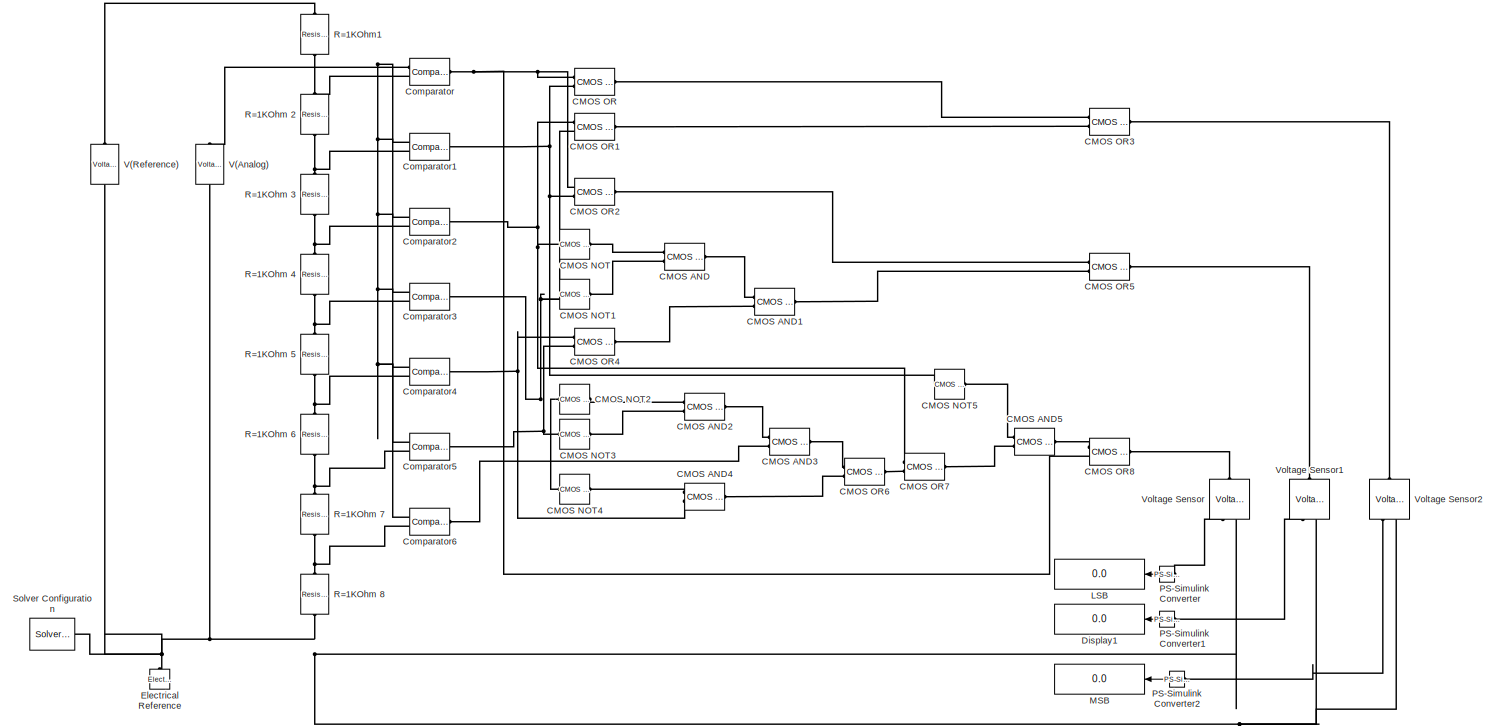
[diagram: root canvas - part 1/1, most of the canvas]
MODEL slx_9718b8f24e78
KIND model
CONFIG AbsTol = auto
CONFIG EnableMultiTasking = off
CONFIG FixedStep = auto
CONFIG MaxStep = auto
CONFIG MinStep = auto
CONFIG RelTol = 1e-3
CONFIG SampleTimeConstraint = Unconstrained
CONFIG SolverName = VariableStepAuto
CONFIG StartTime = 0.0
CONFIG StopTime = 10
BLOCK [Reference] CMOS AND  REF=ee_lib/Integrated Circuits/Logic/CMOS AND
  Ports = [0, 0, 0, 0, 0, 2, 1]
  SourceBlock = ee_lib/Integrated Circuits/Logic/CMOS AND
  SourceProductBaseCode = PS
  SourceType = CMOS AND
BLOCK [Reference] CMOS AND1  REF=ee_lib/Integrated Circuits/Logic/CMOS AND
  Ports = [0, 0, 0, 0, 0, 2, 1]
  SourceBlock = ee_lib/Integrated Circuits/Logic/CMOS AND
  SourceProductBaseCode = PS
  SourceType = CMOS AND
BLOCK [Reference] CMOS AND2  REF=ee_lib/Integrated Circuits/Logic/CMOS AND
  Ports = [0, 0, 0, 0, 0, 2, 1]
  SourceBlock = ee_lib/Integrated Circuits/Logic/CMOS AND
  SourceProductBaseCode = PS
  SourceType = CMOS AND
BLOCK [Reference] CMOS AND3  REF=ee_lib/Integrated Circuits/Logic/CMOS AND
  Ports = [0, 0, 0, 0, 0, 2, 1]
  SourceBlock = ee_lib/Integrated Circuits/Logic/CMOS AND
  SourceProductBaseCode = PS
  SourceType = CMOS AND
BLOCK [Reference] CMOS AND4  REF=ee_lib/Integrated Circuits/Logic/CMOS AND
  Ports = [0, 0, 0, 0, 0, 2, 1]
  SourceBlock = ee_lib/Integrated Circuits/Logic/CMOS AND
  SourceProductBaseCode = PS
  SourceType = CMOS AND
BLOCK [Reference] CMOS AND5  REF=ee_lib/Integrated Circuits/Logic/CMOS AND
  Ports = [0, 0, 0, 0, 0, 2, 1]
  SourceBlock = ee_lib/Integrated Circuits/Logic/CMOS AND
  SourceProductBaseCode = PS
  SourceType = CMOS AND
BLOCK [Reference] CMOS NOT  REF=ee_lib/Integrated Circuits/Logic/CMOS NOT
  Ports = [0, 0, 0, 0, 0, 1, 1]
  SourceBlock = ee_lib/Integrated Circuits/Logic/CMOS NOT
  SourceProductBaseCode = PS
  SourceType = CMOS NOT
BLOCK [Reference] CMOS NOT1  REF=ee_lib/Integrated Circuits/Logic/CMOS NOT
  Ports = [0, 0, 0, 0, 0, 1, 1]
  SourceBlock = ee_lib/Integrated Circuits/Logic/CMOS NOT
  SourceProductBaseCode = PS
  SourceType = CMOS NOT
BLOCK [Reference] CMOS NOT2  REF=ee_lib/Integrated Circuits/Logic/CMOS NOT
  Ports = [0, 0, 0, 0, 0, 1, 1]
  SourceBlock = ee_lib/Integrated Circuits/Logic/CMOS NOT
  SourceProductBaseCode = PS
  SourceType = CMOS NOT
BLOCK [Reference] CMOS NOT3  REF=ee_lib/Integrated Circuits/Logic/CMOS NOT
  Ports = [0, 0, 0, 0, 0, 1, 1]
  SourceBlock = ee_lib/Integrated Circuits/Logic/CMOS NOT
  SourceProductBaseCode = PS
  SourceType = CMOS NOT
BLOCK [Reference] CMOS NOT4  REF=ee_lib/Integrated Circuits/Logic/CMOS NOT
  Ports = [0, 0, 0, 0, 0, 1, 1]
  SourceBlock = ee_lib/Integrated Circuits/Logic/CMOS NOT
  SourceProductBaseCode = PS
  SourceType = CMOS NOT
BLOCK [Reference] CMOS NOT5  REF=ee_lib/Integrated Circuits/Logic/CMOS NOT
  Ports = [0, 0, 0, 0, 0, 1, 1]
  SourceBlock = ee_lib/Integrated Circuits/Logic/CMOS NOT
  SourceProductBaseCode = PS
  SourceType = CMOS NOT
BLOCK [Reference] CMOS OR  REF=ee_lib/Integrated Circuits/Logic/CMOS OR
  Ports = [0, 0, 0, 0, 0, 2, 1]
  SourceBlock = ee_lib/Integrated Circuits/Logic/CMOS OR
  SourceProductBaseCode = PS
  SourceType = CMOS OR
BLOCK [Reference] CMOS OR1  REF=ee_lib/Integrated Circuits/Logic/CMOS OR
  Ports = [0, 0, 0, 0, 0, 2, 1]
  SourceBlock = ee_lib/Integrated Circuits/Logic/CMOS OR
  SourceProductBaseCode = PS
  SourceType = CMOS OR
BLOCK [Reference] CMOS OR2  REF=ee_lib/Integrated Circuits/Logic/CMOS OR
  Ports = [0, 0, 0, 0, 0, 2, 1]
  SourceBlock = ee_lib/Integrated Circuits/Logic/CMOS OR
  SourceProductBaseCode = PS
  SourceType = CMOS OR
BLOCK [Reference] CMOS OR3  REF=ee_lib/Integrated Circuits/Logic/CMOS OR
  Ports = [0, 0, 0, 0, 0, 2, 1]
  SourceBlock = ee_lib/Integrated Circuits/Logic/CMOS OR
  SourceProductBaseCode = PS
  SourceType = CMOS OR
BLOCK [Reference] CMOS OR4  REF=ee_lib/Integrated Circuits/Logic/CMOS OR
  Ports = [0, 0, 0, 0, 0, 2, 1]
  SourceBlock = ee_lib/Integrated Circuits/Logic/CMOS OR
  SourceProductBaseCode = PS
  SourceType = CMOS OR
BLOCK [Reference] CMOS OR5  REF=ee_lib/Integrated Circuits/Logic/CMOS OR
  Ports = [0, 0, 0, 0, 0, 2, 1]
  SourceBlock = ee_lib/Integrated Circuits/Logic/CMOS OR
  SourceProductBaseCode = PS
  SourceType = CMOS OR
BLOCK [Reference] CMOS OR6  REF=ee_lib/Integrated Circuits/Logic/CMOS OR
  Ports = [0, 0, 0, 0, 0, 2, 1]
  SourceBlock = ee_lib/Integrated Circuits/Logic/CMOS OR
  SourceProductBaseCode = PS
  SourceType = CMOS OR
BLOCK [Reference] CMOS OR7  REF=ee_lib/Integrated Circuits/Logic/CMOS OR
  Ports = [0, 0, 0, 0, 0, 2, 1]
  SourceBlock = ee_lib/Integrated Circuits/Logic/CMOS OR
  SourceProductBaseCode = PS
  SourceType = CMOS OR
BLOCK [Reference] CMOS OR8  REF=ee_lib/Integrated Circuits/Logic/CMOS OR
  Ports = [0, 0, 0, 0, 0, 2, 1]
  SourceBlock = ee_lib/Integrated Circuits/Logic/CMOS OR
  SourceProductBaseCode = PS
  SourceType = CMOS OR
BLOCK [Reference] Comparator  REF=ee_lib/Integrated Circuits/Comparator
  Ports = [0, 0, 0, 0, 0, 2, 1]
  SourceBlock = ee_lib/Integrated Circuits/Comparator
  SourceProductBaseCode = PS
  SourceType = Comparator
BLOCK [Reference] Comparator1  REF=ee_lib/Integrated Circuits/Comparator
  Ports = [0, 0, 0, 0, 0, 2, 1]
  SourceBlock = ee_lib/Integrated Circuits/Comparator
  SourceProductBaseCode = PS
  SourceType = Comparator
BLOCK [Reference] Comparator2  REF=ee_lib/Integrated Circuits/Comparator
  Ports = [0, 0, 0, 0, 0, 2, 1]
  SourceBlock = ee_lib/Integrated Circuits/Comparator
  SourceProductBaseCode = PS
  SourceType = Comparator
BLOCK [Reference] Comparator3  REF=ee_lib/Integrated Circuits/Comparator
  Ports = [0, 0, 0, 0, 0, 2, 1]
  SourceBlock = ee_lib/Integrated Circuits/Comparator
  SourceProductBaseCode = PS
  SourceType = Comparator
BLOCK [Reference] Comparator4  REF=ee_lib/Integrated Circuits/Comparator
  Ports = [0, 0, 0, 0, 0, 2, 1]
  SourceBlock = ee_lib/Integrated Circuits/Comparator
  SourceProductBaseCode = PS
  SourceType = Comparator
BLOCK [Reference] Comparator5  REF=ee_lib/Integrated Circuits/Comparator
  Ports = [0, 0, 0, 0, 0, 2, 1]
  SourceBlock = ee_lib/Integrated Circuits/Comparator
  SourceProductBaseCode = PS
  SourceType = Comparator
BLOCK [Reference] Comparator6  REF=ee_lib/Integrated Circuits/Comparator
  Ports = [0, 0, 0, 0, 0, 2, 1]
  SourceBlock = ee_lib/Integrated Circuits/Comparator
  SourceProductBaseCode = PS
  SourceType = Comparator
BLOCK [Display] Display1
  Decimation = 1
  NameLocation = top
  Ports = [1]
BLOCK [Reference] Electrical Reference  REF=fl_lib/Electrical/Electrical Elements/Electrical Reference
  NameLocation = right
  Ports = [0, 0, 0, 0, 0, 1]
  SourceBlock = fl_lib/Electrical/Electrical Elements/Electrical Reference
  SourceProductBaseCode = PW,SS,VE
  SourceType = Electrical Reference
BLOCK [Display] LSB
  Decimation = 1
  NameLocation = top
  Ports = [1]
BLOCK [Display] MSB
  Decimation = 1
  NameLocation = top
  Ports = [1]
BLOCK [Reference] PS-Simulink Converter  REF=nesl_utility/PS-Simulink
Converter
  NameLocation = top
  Ports = [0, 1, 0, 0, 0, 1]
  SourceBlock = nesl_utility/PS-Simulink\nConverter
  SourceProductBaseCode = SS,PW,VE
  SourceType = PS-Simulink\nConverter
BLOCK [Reference] PS-Simulink Converter1  REF=nesl_utility/PS-Simulink
Converter
  NameLocation = top
  Ports = [0, 1, 0, 0, 0, 1]
  SourceBlock = nesl_utility/PS-Simulink\nConverter
  SourceProductBaseCode = SS,PW,VE
  SourceType = PS-Simulink\nConverter
BLOCK [Reference] PS-Simulink Converter2  REF=nesl_utility/PS-Simulink
Converter
  NameLocation = top
  Ports = [0, 1, 0, 0, 0, 1]
  SourceBlock = nesl_utility/PS-Simulink\nConverter
  SourceProductBaseCode = SS,PW,VE
  SourceType = PS-Simulink\nConverter
BLOCK [Reference] R=1KOhm 2  REF=fl_lib/Electrical/Electrical Elements/Resistor
  NameLocation = left
  Ports = [0, 0, 0, 0, 0, 1, 1]
  SourceBlock = fl_lib/Electrical/Electrical Elements/Resistor
  SourceProductBaseCode = PW,SS,VE
  SourceType = Resistor
BLOCK [Reference] R=1KOhm 3  REF=fl_lib/Electrical/Electrical Elements/Resistor
  NameLocation = left
  Ports = [0, 0, 0, 0, 0, 1, 1]
  SourceBlock = fl_lib/Electrical/Electrical Elements/Resistor
  SourceProductBaseCode = PW,SS,VE
  SourceType = Resistor
BLOCK [Reference] R=1KOhm 4  REF=fl_lib/Electrical/Electrical Elements/Resistor
  NameLocation = left
  Ports = [0, 0, 0, 0, 0, 1, 1]
  SourceBlock = fl_lib/Electrical/Electrical Elements/Resistor
  SourceProductBaseCode = PW,SS,VE
  SourceType = Resistor
BLOCK [Reference] R=1KOhm 5  REF=fl_lib/Electrical/Electrical Elements/Resistor
  NameLocation = left
  Ports = [0, 0, 0, 0, 0, 1, 1]
  SourceBlock = fl_lib/Electrical/Electrical Elements/Resistor
  SourceProductBaseCode = PW,SS,VE
  SourceType = Resistor
BLOCK [Reference] R=1KOhm 6  REF=fl_lib/Electrical/Electrical Elements/Resistor
  NameLocation = left
  Ports = [0, 0, 0, 0, 0, 1, 1]
  SourceBlock = fl_lib/Electrical/Electrical Elements/Resistor
  SourceProductBaseCode = PW,SS,VE
  SourceType = Resistor
BLOCK [Reference] R=1KOhm 7  REF=fl_lib/Electrical/Electrical Elements/Resistor
  NameLocation = left
  Ports = [0, 0, 0, 0, 0, 1, 1]
  SourceBlock = fl_lib/Electrical/Electrical Elements/Resistor
  SourceProductBaseCode = PW,SS,VE
  SourceType = Resistor
BLOCK [Reference] R=1KOhm 8  REF=fl_lib/Electrical/Electrical Elements/Resistor
  NameLocation = left
  Ports = [0, 0, 0, 0, 0, 1, 1]
  SourceBlock = fl_lib/Electrical/Electrical Elements/Resistor
  SourceProductBaseCode = PW,SS,VE
  SourceType = Resistor
BLOCK [Reference] R=1KOhm1   REF=fl_lib/Electrical/Electrical Elements/Resistor
  NameLocation = left
  Ports = [0, 0, 0, 0, 0, 1, 1]
  SourceBlock = fl_lib/Electrical/Electrical Elements/Resistor
  SourceProductBaseCode = PW,SS,VE
  SourceType = Resistor
BLOCK [Reference] Solver Configuration  REF=nesl_utility/Solver
Configuration
  Ports = [0, 0, 0, 0, 0, 0, 1]
  SourceBlock = nesl_utility/Solver\nConfiguration
  SourceProductBaseCode = SS,PW,VE
  SourceType = Solver\nConfiguration
BLOCK [Reference] V(Analog)  REF=ee_lib/Sources/Voltage Source
  NameLocation = right
  Ports = [0, 0, 0, 0, 0, 1, 1]
  SourceBlock = ee_lib/Sources/Voltage Source
  SourceProductBaseCode = PS
  SourceType = Voltage Source
BLOCK [Reference] V(Reference)  REF=ee_lib/Sources/Voltage Source
  NameLocation = right
  Ports = [0, 0, 0, 0, 0, 1, 1]
  SourceBlock = ee_lib/Sources/Voltage Source
  SourceProductBaseCode = PS
  SourceType = Voltage Source
BLOCK [Reference] Voltage Sensor  REF=fl_lib/Electrical/Electrical Sensors/Voltage Sensor
  NameLocation = right
  Ports = [0, 0, 0, 0, 0, 1, 2]
  SourceBlock = fl_lib/Electrical/Electrical Sensors/Voltage Sensor
  SourceProductBaseCode = PW,SS,VE
  SourceType = Voltage Sensor
BLOCK [Reference] Voltage Sensor1  REF=fl_lib/Electrical/Electrical Sensors/Voltage Sensor
  NameLocation = right
  Ports = [0, 0, 0, 0, 0, 1, 2]
  SourceBlock = fl_lib/Electrical/Electrical Sensors/Voltage Sensor
  SourceProductBaseCode = PW,SS,VE
  SourceType = Voltage Sensor
BLOCK [Reference] Voltage Sensor2  REF=fl_lib/Electrical/Electrical Sensors/Voltage Sensor
  NameLocation = right
  Ports = [0, 0, 0, 0, 0, 1, 2]
  SourceBlock = fl_lib/Electrical/Electrical Sensors/Voltage Sensor
  SourceProductBaseCode = PW,SS,VE
  SourceType = Voltage Sensor
LINE PS-Simulink Converter1:1 -> Display1:1
LINE PS-Simulink Converter2:1 -> MSB:1
LINE PS-Simulink Converter:1 -> LSB:1
PLINE CMOS AND1:LConn1 -- CMOS AND:RConn1
PLINE CMOS AND1:LConn2 -- CMOS OR4:RConn1
PLINE CMOS AND1:RConn1 -- CMOS OR5:LConn2
PLINE CMOS AND2:LConn1 -- CMOS NOT2:RConn1
PLINE CMOS AND2:LConn2 -- CMOS NOT3:RConn1
PLINE CMOS AND2:RConn1 -- CMOS AND3:LConn1
PLINE CMOS AND3:LConn2 -- Comparator6:RConn1
PLINE CMOS AND3:RConn1 -- CMOS OR6:LConn1
PLINE CMOS AND4:LConn1 -- CMOS NOT4:RConn1
PNET net1: CMOS AND4:LConn2 -- CMOS OR4:LConn1 -- Comparator4:RConn1
PLINE CMOS AND4:RConn1 -- CMOS OR6:LConn2
PLINE CMOS AND5:LConn1 -- CMOS NOT5:RConn1
PLINE CMOS AND5:LConn2 -- CMOS OR7:RConn1
PLINE CMOS AND5:RConn1 -- CMOS OR8:LConn1
PLINE CMOS AND:LConn1 -- CMOS NOT:RConn1
PLINE CMOS AND:LConn2 -- CMOS NOT1:RConn1
PNET net2: CMOS NOT1:LConn1 -- CMOS NOT2:LConn1 -- CMOS NOT4:LConn1 -- CMOS OR1:LConn2 -- Comparator3:RConn1
PNET net3: CMOS NOT3:LConn1 -- CMOS OR4:LConn2 -- Comparator5:RConn1
PNET net4: CMOS NOT5:LConn1 -- CMOS OR2:LConn2 -- CMOS OR:LConn2 -- Comparator1:RConn1
PNET net5: CMOS NOT:LConn1 -- CMOS OR1:LConn1 -- CMOS OR7:LConn1 -- Comparator2:RConn1
PLINE CMOS OR1:RConn1 -- CMOS OR3:LConn2
PNET net6: CMOS OR2:LConn1 -- CMOS OR8:LConn2 -- CMOS OR:LConn1 -- Comparator:RConn1
PLINE CMOS OR2:RConn1 -- CMOS OR5:LConn1
PLINE CMOS OR3:LConn1 -- CMOS OR:RConn1
PLINE CMOS OR3:RConn1 -- Voltage Sensor2:LConn1
PLINE CMOS OR5:RConn1 -- Voltage Sensor1:LConn1
PLINE CMOS OR6:RConn1 -- CMOS OR7:LConn2
PLINE CMOS OR8:RConn1 -- Voltage Sensor:LConn1
PNET net7: Comparator1:LConn1 -- Comparator2:LConn1 -- Comparator3:LConn1 -- Comparator4:LConn1 -- Comparator5:LConn1 -- Comparator6:LConn1 -- Comparator:LConn1 -- V(Analog):LConn1
PNET net8: Comparator1:LConn2 -- R=1KOhm 2:RConn1 -- R=1KOhm 3:LConn1
PNET net9: Comparator2:LConn2 -- R=1KOhm 3:RConn1 -- R=1KOhm 4:LConn1
PNET net10: Comparator3:LConn2 -- R=1KOhm 4:RConn1 -- R=1KOhm 5:LConn1
PNET net11: Comparator4:LConn2 -- R=1KOhm 5:RConn1 -- R=1KOhm 6:LConn1
PNET net12: Comparator5:LConn2 -- R=1KOhm 6:RConn1 -- R=1KOhm 7:LConn1
PNET net13: Comparator6:LConn2 -- R=1KOhm 7:RConn1 -- R=1KOhm 8:LConn1
PNET net14: Comparator:LConn2 -- R=1KOhm 2:LConn1 -- R=1KOhm1 :RConn1
PNET net15: Electrical Reference:LConn1 -- R=1KOhm 8:RConn1 -- Solver Configuration:RConn1 -- V(Analog):RConn1 -- V(Reference):RConn1 -- Voltage Sensor1:RConn2 -- Voltage Sensor2:RConn2 -- Voltage Sensor:RConn2
PLINE PS-Simulink Converter1:LConn1 -- Voltage Sensor1:RConn1
PLINE PS-Simulink Converter2:LConn1 -- Voltage Sensor2:RConn1
PLINE PS-Simulink Converter:LConn1 -- Voltage Sensor:RConn1
PLINE R=1KOhm1 :LConn1 -- V(Reference):LConn1
note: PNET lines group multi-terminal physical nets as a canonical sorted terminal list (undirected conserving connections); 2-terminal nets keep the pairwise PLINE form
